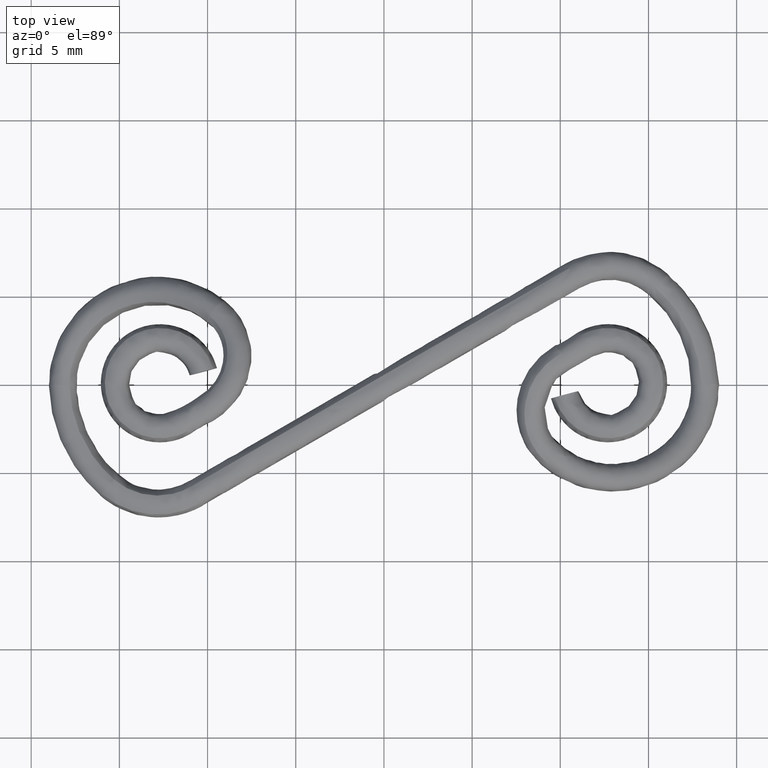
[diagram: clean part render]
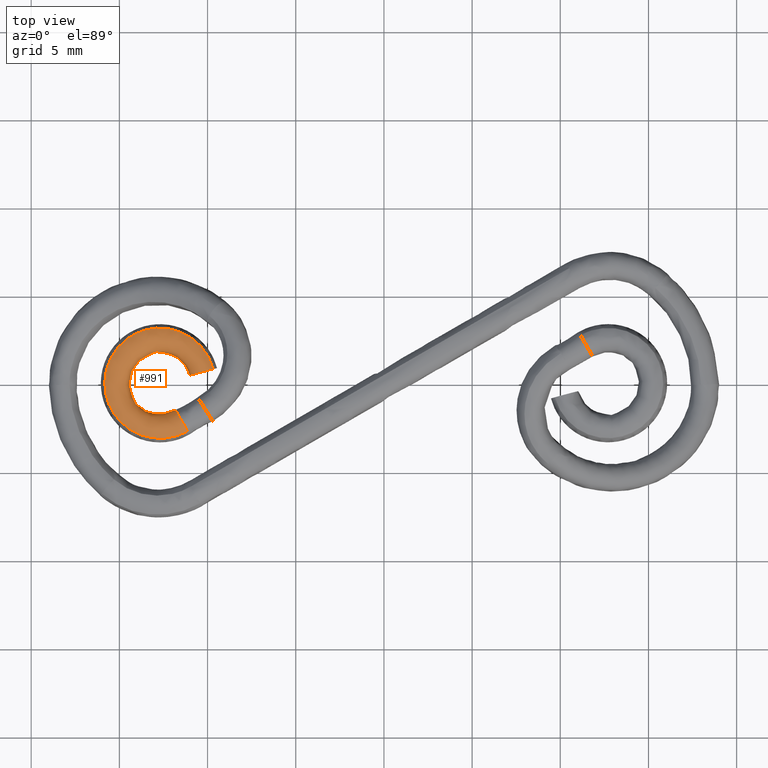
[diagram: same view with one face highlighted and labeled with its STEP entity id]
A machine part, top view. The second image highlights one B-rep face of the part: STEP entity #991.
In plain terms, the highlighted face is a freeform B-spline surface patch.
Its self-contained STEP definition (entity closure, byte-faithful):
#133=CARTESIAN_POINT('',(-11.765403741056080,-1.618769099119440,3.823952250138002));
#134=VERTEX_POINT('',#133);
#135=CARTESIAN_POINT('',(-11.824999701551890,-1.515546016367103,4.244071500000500));
#136=VERTEX_POINT('',#135);
#137=CARTESIAN_POINT('',(-11.765403741056081,-1.618769099119440,3.823952250138003));
#138=CARTESIAN_POINT('',(-11.824999701551889,-1.515546016367103,4.017103955124761));
#139=CARTESIAN_POINT('',(-11.824999701551890,-1.515546016367103,4.244071500000500));
#147=(BOUNDED_CURVE()B_SPLINE_CURVE(2,(#137,#138,#139),.UNSPECIFIED.,.F.,.U.)B_SPLINE_CURVE_WITH_KNOTS((3,3),(0.910241638682620,1.0),.UNSPECIFIED.)CURVE()GEOMETRIC_REPRESENTATION_ITEM()RATIONAL_B_SPLINE_CURVE((0.865193886531536,0.894841538553326,1.0))REPRESENTATION_ITEM(''));
#148=EDGE_CURVE('',#134,#136,#147,.T.);
#150=CARTESIAN_POINT('',(-11.136875347945059,-2.707410641357787,4.798994144643492));
#151=VERTEX_POINT('',#150);
#152=CARTESIAN_POINT('',(-11.824999701551890,-1.515546016367103,4.244071500000500));
#153=CARTESIAN_POINT('',(-11.824999701551894,-1.515546016367103,5.044071500000501));
#154=CARTESIAN_POINT('',(-11.424999269229319,-2.208366089792920,5.044071500000500));
#155=CARTESIAN_POINT('',(-11.254879493014080,-2.503021760948746,5.044071500000500));
#156=CARTESIAN_POINT('',(-11.136875347945059,-2.707410641357787,4.798994144643492));
#164=(BOUNDED_CURVE()B_SPLINE_CURVE(2,(#152,#153,#154,#155,#156),.UNSPECIFIED.,.F.,.U.)B_SPLINE_CURVE_WITH_KNOTS((3,2,3),(0.0,0.250000000000000,0.377844262566441),.UNSPECIFIED.)CURVE()GEOMETRIC_REPRESENTATION_ITEM()RATIONAL_B_SPLINE_CURVE((1.0,0.707106781186548,1.0,0.850221129720332,0.853629213192174))REPRESENTATION_ITEM(''));
#165=EDGE_CURVE('',#136,#151,#164,.T.);
#182=CARTESIAN_POINT('',(-11.147537647097540,-2.688943024125289,3.667824280109547));
#183=VERTEX_POINT('',#182);
#197=CARTESIAN_POINT('',(-11.553128557224699,-1.986439972860220,3.486224758118580));
#198=VERTEX_POINT('',#197);
#199=CARTESIAN_POINT('',(-11.147537647097543,-2.688943024125289,3.667824280109547));
#200=CARTESIAN_POINT('',(-11.263713350117717,-2.487721093667864,3.444071500000500));
#201=CARTESIAN_POINT('',(-11.424999269229319,-2.208366089792920,3.444071500000500));
#202=CARTESIAN_POINT('',(-11.490797453488662,-2.094400455843105,3.444071500000500));
#203=CARTESIAN_POINT('',(-11.553128557224701,-1.986439972860220,3.486224758118581));
#211=(BOUNDED_CURVE()B_SPLINE_CURVE(2,(#199,#200,#201,#202,#203),.UNSPECIFIED.,.F.,.U.)B_SPLINE_CURVE_WITH_KNOTS((3,2,3),(0.627844262552107,0.750000000000000,0.804447987287101),.UNSPECIFIED.)CURVE()GEOMETRIC_REPRESENTATION_ITEM()RATIONAL_B_SPLINE_CURVE((0.853629213191410,0.856885651449423,1.0,0.936210214982268,0.900206233194075))REPRESENTATION_ITEM(''));
#212=EDGE_CURVE('',#183,#198,#211,.T.);
#288=CARTESIAN_POINT('',(-11.553128557224699,-1.986439972860220,3.486224758118581));
#289=CARTESIAN_POINT('',(-11.689696234841517,-1.749898157430431,3.578582701747879));
#290=CARTESIAN_POINT('',(-11.765403741056080,-1.618769099119440,3.823952250138003));
#298=(BOUNDED_CURVE()B_SPLINE_CURVE(2,(#288,#289,#290),.UNSPECIFIED.,.F.,.U.)B_SPLINE_CURVE_WITH_KNOTS((3,3),(0.804447987287101,0.910241638682619),.UNSPECIFIED.)CURVE()GEOMETRIC_REPRESENTATION_ITEM()RATIONAL_B_SPLINE_CURVE((0.900206233194076,0.830249695075117,0.865193886531535))REPRESENTATION_ITEM(''));
#299=EDGE_CURVE('',#198,#134,#298,.T.);
#858=CARTESIAN_POINT('',(-9.631354445126171,0.597373041269911,4.798994144650743));
#859=CARTESIAN_POINT('',(-10.312959689421984,4.098707573917936,4.798994144650743));
#860=CARTESIAN_POINT('',(-13.694660062142960,2.963792683847368,4.798994144650743));
#861=CARTESIAN_POINT('',(-17.076360434863943,1.828877793776802,4.798994144650743));
#862=CARTESIAN_POINT('',(-15.507741204984050,-1.374770584278463,4.798994144650743));
#863=CARTESIAN_POINT('',(-13.939121975104159,-4.578418962333728,4.798994144650743));
#864=CARTESIAN_POINT('',(-10.968867632961000,-2.603192807802345,4.798994144650743));
#865=CARTESIAN_POINT('',(-10.176052008130746,0.491336696545581,5.375241364561068));
#866=CARTESIAN_POINT('',(-10.736669320837919,3.371168935233679,5.375241364561068));
#867=CARTESIAN_POINT('',(-13.518102989668224,2.437706434545250,5.375241364561068));
#868=CARTESIAN_POINT('',(-16.299536658498532,1.504243933856820,5.375241364561068));
#869=CARTESIAN_POINT('',(-15.009354247674231,-1.130742753224142,5.375241364561068));
#870=CARTESIAN_POINT('',(-13.719171836849924,-3.765729440305103,5.375241364561068));
#871=CARTESIAN_POINT('',(-11.276150716803450,-2.141114624017505,5.375241364561068));
#872=CARTESIAN_POINT('',(-10.741681216812880,0.381225585662081,4.820318719910825));
#873=CARTESIAN_POINT('',(-11.176661271980137,2.615672431422080,4.820318719910824));
#874=CARTESIAN_POINT('',(-13.334761179508000,1.891403735392526,4.820318719910825));
#875=CARTESIAN_POINT('',(-15.492861087035857,1.167135039362971,4.820318719910824));
#876=CARTESIAN_POINT('',(-14.491815269299391,-0.877337417216581,4.820318719910825));
#877=CARTESIAN_POINT('',(-13.490769451562912,-2.921809873796134,4.820318719910824));
#878=CARTESIAN_POINT('',(-11.595242079350539,-1.661279693231700,4.820318719910825));
#879=CARTESIAN_POINT('',(-11.307310425495020,0.271114474778581,4.265396075260582));
#880=CARTESIAN_POINT('',(-11.616653223122357,1.860175927610483,4.265396075260582));
#881=CARTESIAN_POINT('',(-13.151419369347776,1.345101036239802,4.265396075260582));
#882=CARTESIAN_POINT('',(-14.686185515573197,0.830026144869121,4.265396075260582));
#883=CARTESIAN_POINT('',(-13.974276290924545,-0.623932081209021,4.265396075260582));
#884=CARTESIAN_POINT('',(-13.262367066275894,-2.077890307287164,4.265396075260582));
#885=CARTESIAN_POINT('',(-11.914333441897636,-1.181444762445895,4.265396075260582));
#886=CARTESIAN_POINT('',(-10.762612862490450,0.377150819502911,3.689148855350256));
#887=CARTESIAN_POINT('',(-11.192943591706422,2.587714566294738,3.689148855350256));
#888=CARTESIAN_POINT('',(-13.327976441822520,1.871187285541920,3.689148855350256));
#889=CARTESIAN_POINT('',(-15.463009291938613,1.154660004789102,3.689148855350256));
#890=CARTESIAN_POINT('',(-14.472663248234371,-0.867959912263342,3.689148855350256));
#891=CARTESIAN_POINT('',(-13.482317204530126,-2.890579829315786,3.689148855350256));
#892=CARTESIAN_POINT('',(-11.607050358055190,-1.643522946230734,3.689148855350256));
#893=CARTESIAN_POINT('',(-10.217915299485870,0.483187164227241,3.112901635439930));
#894=CARTESIAN_POINT('',(-10.769233960290491,3.315253204978993,3.112901635439930));
#895=CARTESIAN_POINT('',(-13.504533514297256,2.397273534844037,3.112901635439930));
#896=CARTESIAN_POINT('',(-16.239833068304023,1.479293864709082,3.112901635439930));
#897=CARTESIAN_POINT('',(-14.971050205544199,-1.111987743317663,3.112901635439930));
#898=CARTESIAN_POINT('',(-13.702267342784364,-3.703269351344408,3.112901635439930));
#899=CARTESIAN_POINT('',(-11.299767274212739,-2.105601130015572,3.112901635439930));
#900=CARTESIAN_POINT('',(-9.652286090803733,0.593298275110741,3.667824280090175));
#901=CARTESIAN_POINT('',(-10.329242009148267,4.070749708790594,3.667824280090176));
#902=CARTESIAN_POINT('',(-13.687875324457480,2.943576233996762,3.667824280090175));
#903=CARTESIAN_POINT('',(-17.046508639766696,1.816402759202931,3.667824280090176));
#904=CARTESIAN_POINT('',(-15.488589183919039,-1.365393079325223,3.667824280090175));
#905=CARTESIAN_POINT('',(-13.930669728071379,-4.547188917853379,3.667824280090176));
#906=CARTESIAN_POINT('',(-10.980675911665649,-2.585436060801378,3.667824280090175));
#914=(BOUNDED_SURFACE()B_SPLINE_SURFACE(2,2,((#858,#865,#872,#879,#886,#893,#900),(#859,#866,#873,#880,#887,#894,#901),(#860,#867,#874,#881,#888,#895,#902),(#861,#868,#875,#882,#889,#896,#903),(#862,#869,#876,#883,#890,#897,#904),(#863,#870,#877,#884,#891,#898,#905),(#864,#871,#878,#885,#892,#899,#906)),.UNSPECIFIED.,.F.,.F.,.U.)B_SPLINE_SURFACE_WITH_KNOTS((3,2,2,3),(3,2,2,3),(0.0,5.668304451061182,11.336608902122361,17.004913353183550),(0.0,1.325483399593907,2.650966799187813,3.976450198781720),.UNSPECIFIED.)GEOMETRIC_REPRESENTATION_ITEM()RATIONAL_B_SPLINE_SURFACE(((1.0,0.707106781186548,1.0,0.707106781186548,1.0,0.707106781186548,1.0),(0.659109585124957,0.466060857186909,0.659109585124957,0.466060857186909,0.659109585124957,0.466060857186909,0.659109585124957),(1.0,0.707106781186548,1.0,0.707106781186548,1.0,0.707106781186548,1.0),(0.659109585124957,0.466060857186909,0.659109585124957,0.466060857186909,0.659109585124957,0.466060857186909,0.659109585124957),(1.0,0.707106781186548,1.0,0.707106781186548,1.0,0.707106781186548,1.0),(0.659109585124957,0.466060857186909,0.659109585124957,0.466060857186909,0.659109585124957,0.466060857186909,0.659109585124957),(1.0,0.707106781186548,1.0,0.707106781186548,1.0,0.707106781186548,1.0)))REPRESENTATION_ITEM('')SURFACE());
#915=ORIENTED_EDGE('',*,*,#165,.F.);
#916=ORIENTED_EDGE('',*,*,#148,.F.);
#917=ORIENTED_EDGE('',*,*,#299,.F.);
#918=ORIENTED_EDGE('',*,*,#212,.F.);
#919=CARTESIAN_POINT('',(-9.700871981962191,0.803612938846776,3.667824280093413));
#920=VERTEX_POINT('',#919);
#921=CARTESIAN_POINT('',(-9.700871981962191,0.803612938846776,3.667824280093412));
#922=CARTESIAN_POINT('',(-10.555914875590441,3.994677205923281,3.667824280090175));
#923=CARTESIAN_POINT('',(-13.687875324457480,2.943576233996762,3.667824280090174));
#924=CARTESIAN_POINT('',(-17.046508639766696,1.816402759202931,3.667824280090173));
#925=CARTESIAN_POINT('',(-15.488589183919039,-1.365393079325223,3.667824280090174));
#926=CARTESIAN_POINT('',(-14.026637936180038,-4.351189539294369,3.667824280090175));
#927=CARTESIAN_POINT('',(-11.147537647097545,-2.688943024125289,3.667824280109547));
#935=(BOUNDED_CURVE()B_SPLINE_CURVE(2,(#921,#922,#923,#924,#925,#926,#927),.UNSPECIFIED.,.F.,.U.)B_SPLINE_CURVE_WITH_KNOTS((3,2,2,3),(-5.908938893830038,-4.0,-2.0,-0.082944356415451),.UNSPECIFIED.)CURVE()GEOMETRIC_REPRESENTATION_ITEM()RATIONAL_B_SPLINE_CURVE((0.970371494714162,0.674630514255587,1.0,0.659109585124957,1.0,0.673247053159961,0.972897687117501))REPRESENTATION_ITEM(''));
#936=EDGE_CURVE('',#920,#183,#935,.T.);
#937=ORIENTED_EDGE('',*,*,#936,.F.);
#938=CARTESIAN_POINT('',(-11.009626301875750,0.452931455013408,4.244071500000500));
#939=VERTEX_POINT('',#938);
#940=CARTESIAN_POINT('',(-9.700871981962191,0.803612938846776,3.667824280093412));
#941=CARTESIAN_POINT('',(-9.925305885375693,0.743475743429917,3.444071500000500));
#942=CARTESIAN_POINT('',(-10.236885909599300,0.659987694099397,3.444071500000500));
#943=CARTESIAN_POINT('',(-11.009626301875752,0.452931455013408,3.444071500000500));
#944=CARTESIAN_POINT('',(-11.009626301875750,0.452931455013408,4.244071500000500));
#952=(BOUNDED_CURVE()B_SPLINE_CURVE(2,(#940,#941,#942,#943,#944),.UNSPECIFIED.,.F.,.U.)B_SPLINE_CURVE_WITH_KNOTS((3,2,3),(0.627844262560882,0.750000000000000,1.0),.UNSPECIFIED.)CURVE()GEOMETRIC_REPRESENTATION_ITEM()RATIONAL_B_SPLINE_CURVE((0.853629213191878,0.856885651459703,1.0,0.707106781186548,1.0))REPRESENTATION_ITEM(''));
#953=EDGE_CURVE('',#920,#939,#952,.T.);
#954=ORIENTED_EDGE('',*,*,#953,.T.);
#955=CARTESIAN_POINT('',(-9.680274031152079,0.809132171800469,4.798994144648477));
#956=VERTEX_POINT('',#955);
#957=CARTESIAN_POINT('',(-11.009626301875750,0.452931455013408,4.244071500000500));
#958=CARTESIAN_POINT('',(-11.009626301875752,0.452931455013408,5.044071500000501));
#959=CARTESIAN_POINT('',(-10.236885909599300,0.659987694099397,5.044071500000500));
#960=CARTESIAN_POINT('',(-9.908240208293210,0.748048501563790,5.044071500000501));
#961=CARTESIAN_POINT('',(-9.680274031152079,0.809132171800469,4.798994144648477));
#969=(BOUNDED_CURVE()B_SPLINE_CURVE(2,(#957,#958,#959,#960,#961),.UNSPECIFIED.,.F.,.U.)B_SPLINE_CURVE_WITH_KNOTS((3,2,3),(0.0,0.250000000000000,0.377844262563830),.UNSPECIFIED.)CURVE()GEOMETRIC_REPRESENTATION_ITEM()RATIONAL_B_SPLINE_CURVE((1.0,0.707106781186548,1.0,0.850221129723391,0.853629213192035))REPRESENTATION_ITEM(''));
#970=EDGE_CURVE('',#939,#956,#969,.T.);
#971=ORIENTED_EDGE('',*,*,#970,.T.);
#972=CARTESIAN_POINT('',(-9.680274031152079,0.809132171800469,4.798994144648477));
#973=CARTESIAN_POINT('',(-10.541189371925675,4.022112596101761,4.798994144650745));
#974=CARTESIAN_POINT('',(-13.694660062142960,2.963792683847368,4.798994144650743));
#975=CARTESIAN_POINT('',(-17.076360434863943,1.828877793776802,4.798994144650743));
#976=CARTESIAN_POINT('',(-15.507741204984050,-1.374770584278463,4.798994144650743));
#977=CARTESIAN_POINT('',(-14.035749278174688,-4.381073490047600,4.798994144650743));
#978=CARTESIAN_POINT('',(-11.136875347945058,-2.707410641357787,4.798994144643493));
#986=(BOUNDED_CURVE()B_SPLINE_CURVE(2,(#972,#973,#974,#975,#976,#977,#978),.UNSPECIFIED.,.F.,.U.)B_SPLINE_CURVE_WITH_KNOTS((3,2,2,3),(-5.908938881881621,-4.0,-2.0,-0.082944344440798),.UNSPECIFIED.)CURVE()GEOMETRIC_REPRESENTATION_ITEM()RATIONAL_B_SPLINE_CURVE((0.970371491011962,0.674630516292137,1.0,0.659109585124957,1.0,0.673247051118938,0.972897690860963))REPRESENTATION_ITEM(''));
#987=EDGE_CURVE('',#956,#151,#986,.T.);
#988=ORIENTED_EDGE('',*,*,#987,.T.);
#989=EDGE_LOOP('',(#915,#916,#917,#918,#937,#954,#971,#988));
#990=FACE_OUTER_BOUND('',#989,.T.);
#991=ADVANCED_FACE('',(#990),#914,.T.);